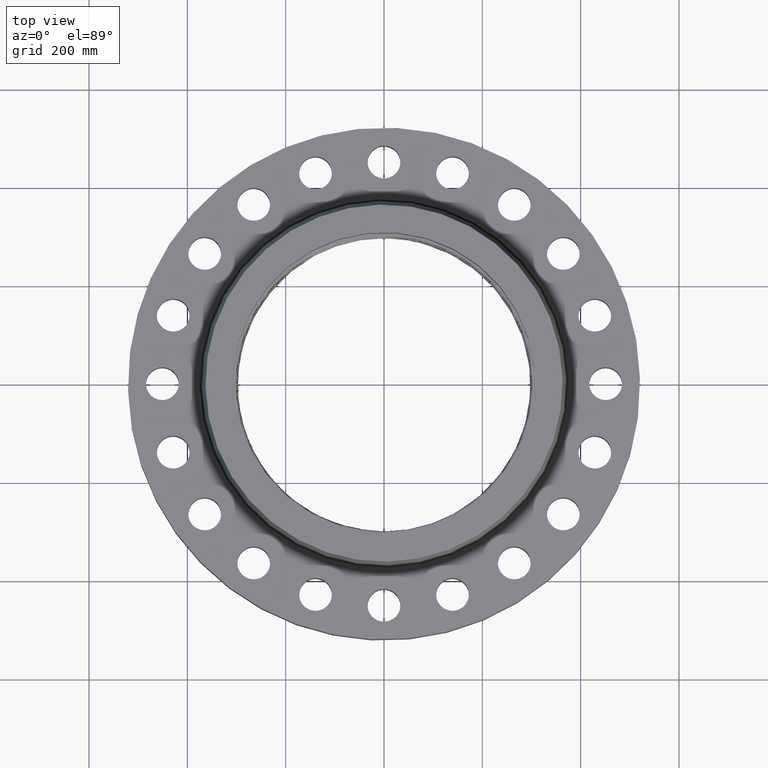
[diagram: clean part render]
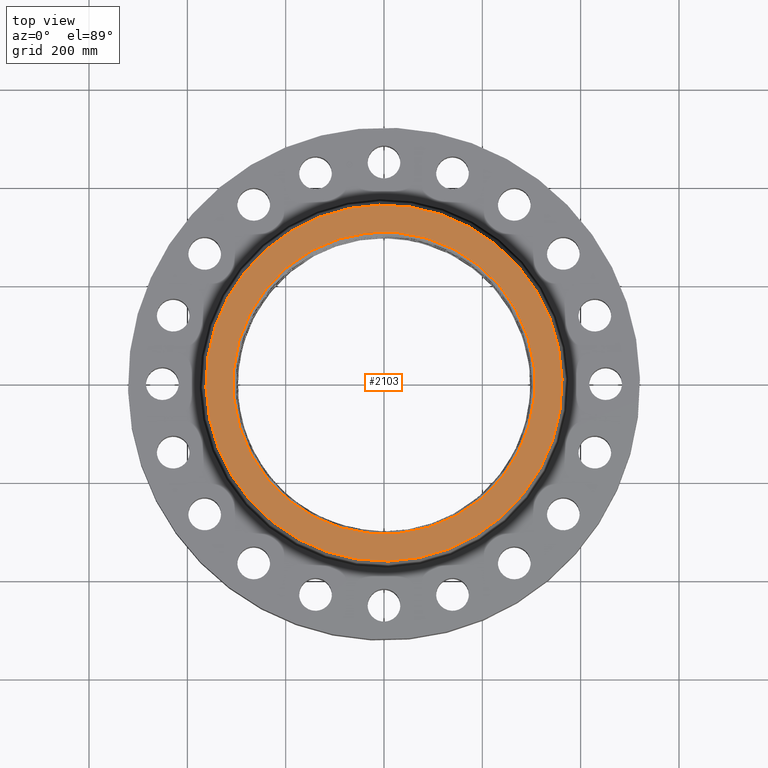
[diagram: same view with one face highlighted and labeled with its STEP entity id]
A machine part, top view. The second image highlights one B-rep face of the part: STEP entity #2103.
In plain terms, the highlighted planar face has unit normal (0, 0, -1).
Its self-contained STEP definition (entity closure, byte-faithful):
#366=AXIS2_PLACEMENT_3D('Circle Axis2P3D',#364,#365,$) ;
#385=AXIS2_PLACEMENT_3D('Circle Axis2P3D',#383,#384,$) ;
#1703=AXIS2_PLACEMENT_3D('Circle Axis2P3D',#1701,#1702,$) ;
#1727=AXIS2_PLACEMENT_3D('Circle Axis2P3D',#1725,#1726,$) ;
#2093=AXIS2_PLACEMENT_3D('Plane Axis2P3D',#2090,#2091,#2092) ;
#361=CARTESIAN_POINT('Vertex',(5.79865188944,-10.6143610861,8.00000000003)) ;
#364=CARTESIAN_POINT('Axis2P3D Location',(0.,0.,8.00000000003)) ;
#368=CARTESIAN_POINT('Vertex',(-5.79865188944,10.6143610861,8.00000000003)) ;
#383=CARTESIAN_POINT('Axis2P3D Location',(0.,0.,8.00000000003)) ;
#1698=CARTESIAN_POINT('Vertex',(-6.83605040264,-12.513306327,8.00000000003)) ;
#1701=CARTESIAN_POINT('Axis2P3D Location',(0.,0.,8.00000000003)) ;
#1705=CARTESIAN_POINT('Vertex',(6.83605040264,12.513306327,8.00000000003)) ;
#1725=CARTESIAN_POINT('Axis2P3D Location',(0.,0.,8.00000000003)) ;
#2090=CARTESIAN_POINT('Axis2P3D Location',(0.,14.2588365704,8.00000000003)) ;
#365=DIRECTION('Axis2P3D Direction',(0.,0.,0.0393700787402)) ;
#384=DIRECTION('Axis2P3D Direction',(0.,0.,0.0393700787402)) ;
#1702=DIRECTION('Axis2P3D Direction',(0.,0.,-0.0393700787402)) ;
#1726=DIRECTION('Axis2P3D Direction',(0.,0.,-0.0393700787402)) ;
#2091=DIRECTION('Axis2P3D Direction',(0.,0.,-0.0393700787402)) ;
#2092=DIRECTION('Axis2P3D XDirection',(0.0393700787402,0.,0.)) ;
#2096=ORIENTED_EDGE('',*,*,#1729,.F.) ;
#2097=ORIENTED_EDGE('',*,*,#1707,.F.) ;
#2100=ORIENTED_EDGE('',*,*,#370,.F.) ;
#2101=ORIENTED_EDGE('',*,*,#387,.F.) ;
#2102=FACE_BOUND('',#2099,.T.) ;
#2103=ADVANCED_FACE('PartBody',(#2098,#2102),#2094,.F.) ;
#367=CIRCLE('generated circle',#366,12.095) ;
#386=CIRCLE('generated circle',#385,12.095) ;
#1704=CIRCLE('generated circle',#1703,14.2588365704) ;
#1728=CIRCLE('generated circle',#1727,14.2588365704) ;
#370=EDGE_CURVE('',#362,#369,#367,.T.) ;
#387=EDGE_CURVE('',#369,#362,#386,.T.) ;
#1707=EDGE_CURVE('',#1699,#1706,#1704,.T.) ;
#1729=EDGE_CURVE('',#1706,#1699,#1728,.T.) ;
#2095=EDGE_LOOP('',(#2096,#2097)) ;
#2099=EDGE_LOOP('',(#2100,#2101)) ;
#2098=FACE_OUTER_BOUND('',#2095,.T.) ;
#2094=PLANE('',#2093) ;
#362=VERTEX_POINT('',#361) ;
#369=VERTEX_POINT('',#368) ;
#1699=VERTEX_POINT('',#1698) ;
#1706=VERTEX_POINT('',#1705) ;